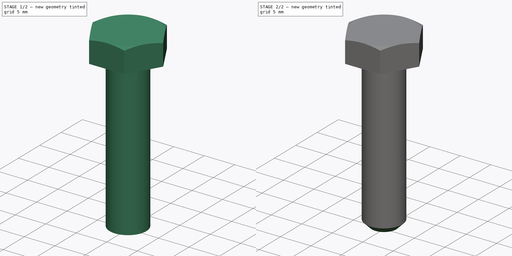
[diagram: build sequence overview — one tinted view per stage of 2, left to right]
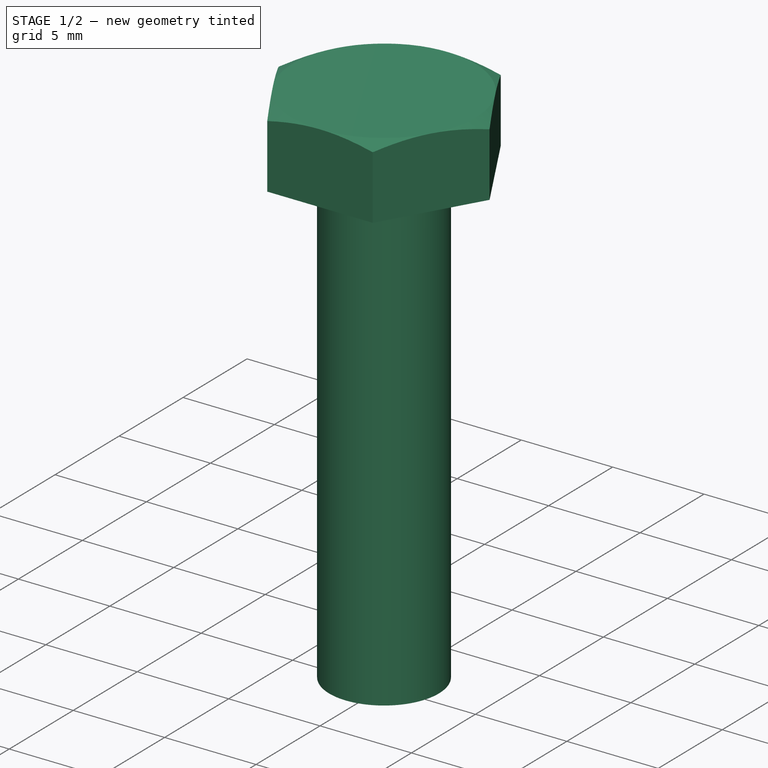
[diagram: stage 1 of 2 — iso view after this stage's code; geometry added in this stage tinted green]
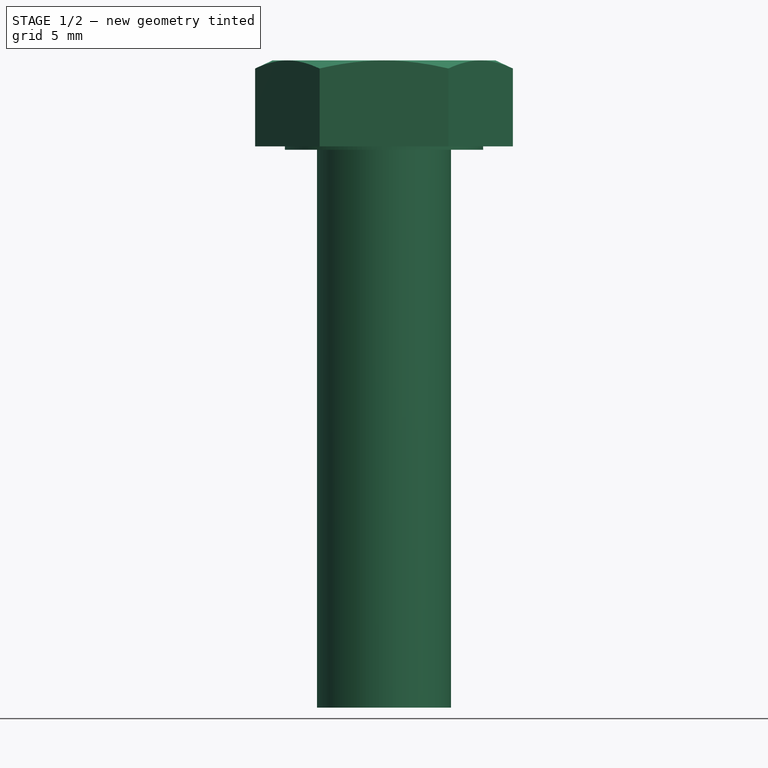
[diagram: stage 1 of 2 — front view after this stage's code; geometry added in this stage tinted green]
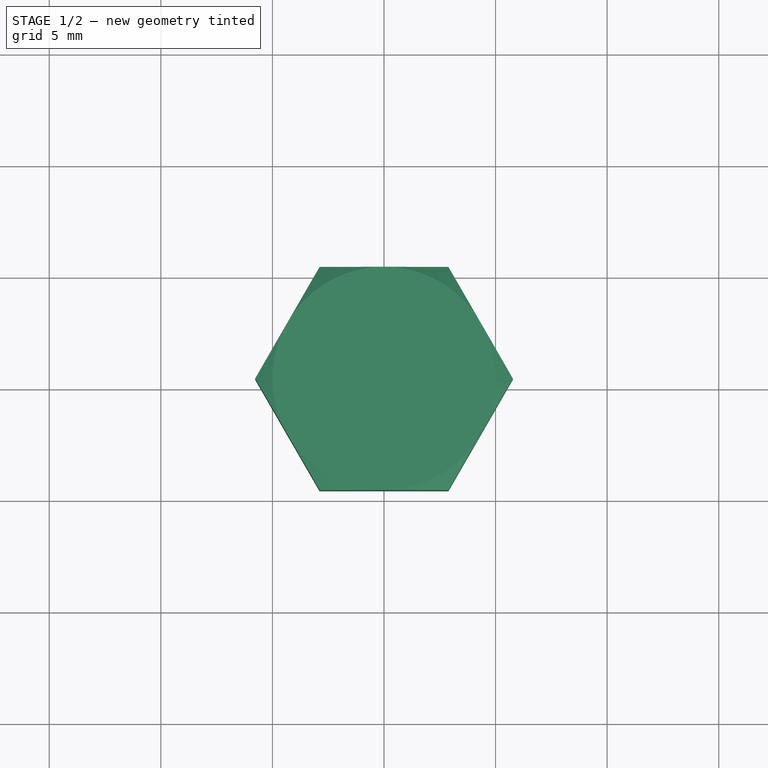
[diagram: stage 1 of 2 — top view after this stage's code; geometry added in this stage tinted green]
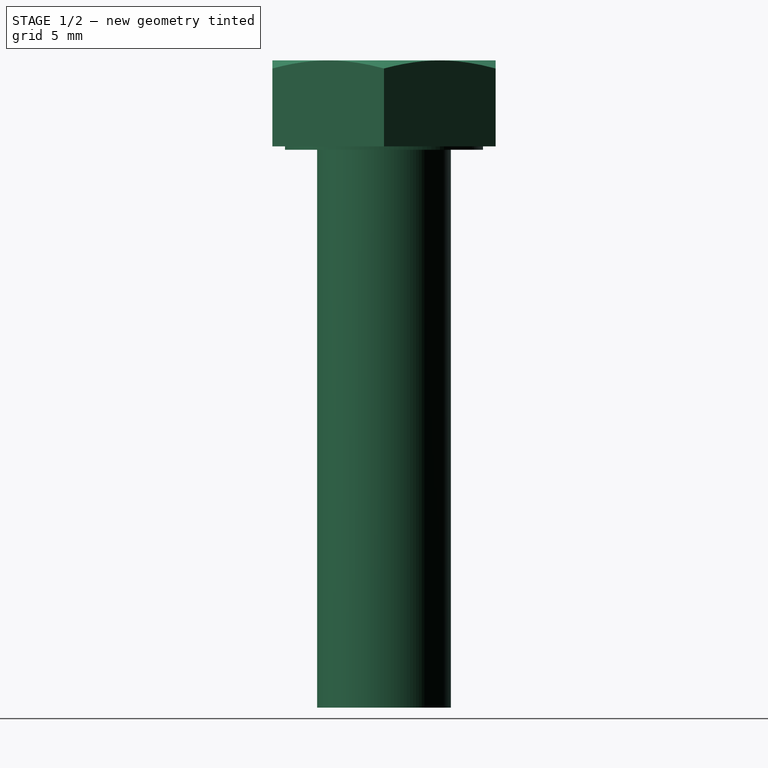
[diagram: stage 1 of 2 — right view after this stage's code; geometry added in this stage tinted green]
FCSTD DOCUMENT
Label: ISO4017_Hex_Head_Screw_M6x25
License: CC-BY 3.0
LicenseURL: http://creativecommons.org/licenses/by/3.0/
objects: Sketcher::SketchObject×2, PartDesign::Revolution×1, PartDesign::Pocket×1, PartDesign::Chamfer×1
note: 7 computed .brp shape members not serialized (recipe doc carries the construction recipe); baked Part::Feature solids carry a one-line shape summary decoded from their .brp

FEATURE [Sketcher::SketchObject] Sketch
  Placement = pos=(0,0,0) rot=(-1,0,0;4.71239rad)
  sketch-geometry (9):
    g0: LineSegment StartX=0 StartY=4 StartZ=0 EndX=5 EndY=4 EndZ=0
    g1: LineSegment StartX=5 StartY=4 StartZ=0 EndX=6 EndY=3.53369 EndZ=0
    g2: LineSegment StartX=6 StartY=3.53369 StartZ=0 EndX=6 EndY=0.15 EndZ=0
    g3: LineSegment StartX=6 StartY=0.15 StartZ=0 EndX=4.44 EndY=0.15 EndZ=0
    g4: LineSegment StartX=4.44 StartY=0.15 StartZ=0 EndX=4.44 EndY=0 EndZ=0
    g5: LineSegment StartX=4.44 StartY=0 StartZ=0 EndX=3 EndY=0 EndZ=0
    g6: LineSegment StartX=3 StartY=0 StartZ=0 EndX=3 EndY=-25 EndZ=0
    g7: LineSegment StartX=3 StartY=-25 StartZ=0 EndX=0 EndY=-25 EndZ=0
    g8: LineSegment StartX=0 StartY=4 StartZ=0 EndX=0 EndY=-25 EndZ=0
  constraints (27):
    c: PointOnObject(g0,g-2)
    c: Horizontal(g0)
    c: Coincident(g0,g1)
    c: Coincident(g1,g2)
    c: Vertical(g2)
    c: Coincident(g2,g3)
    c: Horizontal(g3)
    c: Coincident(g3,g4)
    c: Coincident(g4,g5)
    c: Horizontal(g5)
    c: Vertical(g4)
    c: DistanceX(g0) = 5
    c: Angle(g0,g1) = 2.70526
    c: DistanceY(g4,g2) = 0.15
    c: Vertical(g6)
    c: Coincident(g6,g7)
    c: PointOnObject(g7,g-2)
    c: Horizontal(g7)
    c: Coincident(g5,g6)
    c: DistanceX(g4) = 4.44
    c: DistanceX(g1,g0) = -6
    c: Coincident(g8,g0)
    c: Coincident(g8,g7)
    c: DistanceY(g4,g0) = 4
    c: DistanceX(g7) = -3
    c: PointOnObject(g5,g-1)
    c: DistanceY(g4,g6) = -25
FEATURE [PartDesign::Revolution] Revolution
  Angle = 360
  Axis = (0,0,1)
  Base = (0,0,0)
  Placement = pos=(0,0,0) rot=(-1,0,0;4.71239rad)
  ReferenceAxis = -> Sketch [V_Axis]
  Reversed = true
  Sketch = -> Sketch
FEATURE [Sketcher::SketchObject] Sketch001  label="Hexagon"
  Placement = pos=(0,0,4) rot=(0,0,1;3.14159rad)
  Support = -> Revolution [Face1]
  sketch-geometry (9):
    g0: LineSegment StartX=-2.88675 StartY=5 StartZ=0 EndX=2.88675 EndY=5 EndZ=0
    g1: LineSegment StartX=2.88675 StartY=5 StartZ=0 EndX=5.7735 EndY=0 EndZ=0
    g2: LineSegment StartX=5.7735 StartY=0 StartZ=0 EndX=2.88675 EndY=-5 EndZ=0
    g3: LineSegment StartX=2.88675 StartY=-5 StartZ=0 EndX=-2.88675 EndY=-5 EndZ=0
    g4: LineSegment StartX=-2.88675 StartY=-5 StartZ=0 EndX=-5.7735 EndY=0 EndZ=0
    g5: LineSegment StartX=-5.7735 StartY=0 StartZ=0 EndX=-2.88675 EndY=5 EndZ=0
    g6: Circle [constr] CenterX=0 CenterY=0 CenterZ=0 NormalX=0 NormalY=0 NormalZ=1 Radius=5.7735
    g7: Circle CenterX=0 CenterY=0 CenterZ=0 NormalX=0 NormalY=0 NormalZ=1 Radius=7.7735
    g8: LineSegment [constr] StartX=0 StartY=5.7735 StartZ=0 EndX=0 EndY=7.7735 EndZ=0
  constraints (26):
    c: Horizontal(g0)
    c: Coincident(g0,g1)
    c: Coincident(g1,g2)
    c: Coincident(g2,g3)
    c: Horizontal(g3)
    c: Coincident(g3,g4)
    c: Coincident(g4,g5)
    c: Coincident(g5,g0)
    c: Equal(g5,g0)
    c: Equal(g0,g4)
    c: Equal(g4,g3)
    c: Equal(g3,g2)
    c: Equal(g2,g1)
    c: PointOnObject(g0,g6)
    c: PointOnObject(g2,g6)
    c: PointOnObject(g1,g6)
    c: PointOnObject(g4,g6)
    c: PointOnObject(g0,g6)
    c: DistanceY(g3,g0) = 10
    c: Coincident(g6,g-1)
    c: Coincident(g7,g-1)
    c: PointOnObject(g8,g6)
    c: PointOnObject(g8,g7)
    c: Vertical(g8)
    c: PointOnObject(g8,g-2)
    c: DistanceY(g8) = 2
FEATURE [PartDesign::Pocket] Pocket
  Length = 5
  Placement = pos=(0,0,0) rot=(-1,0,0;4.71239rad)
  Sketch = -> Sketch001
  Type = 1
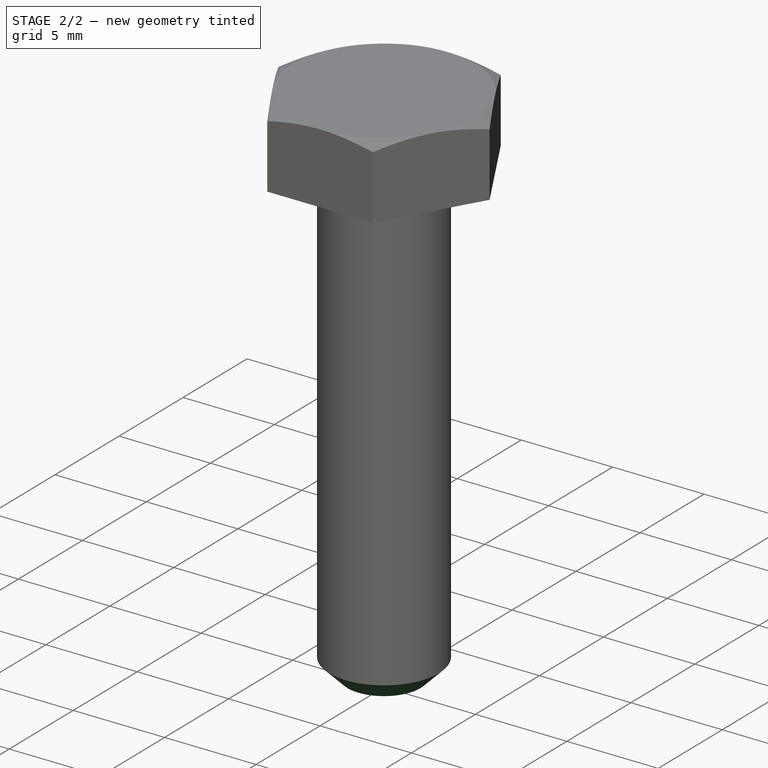
[diagram: stage 2 of 2 — iso view after this stage's code; geometry added in this stage tinted green]
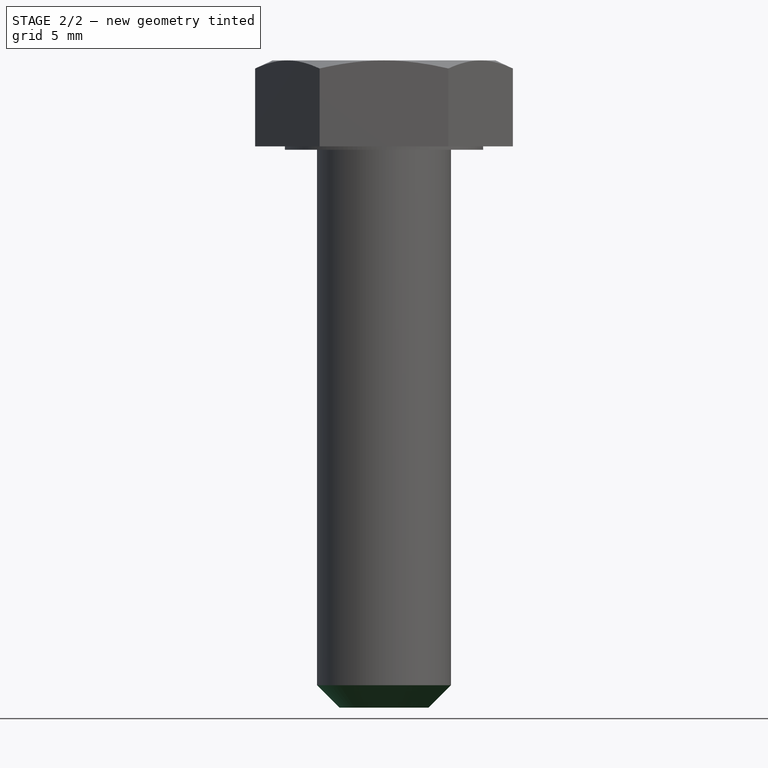
[diagram: stage 2 of 2 — front view after this stage's code; geometry added in this stage tinted green]
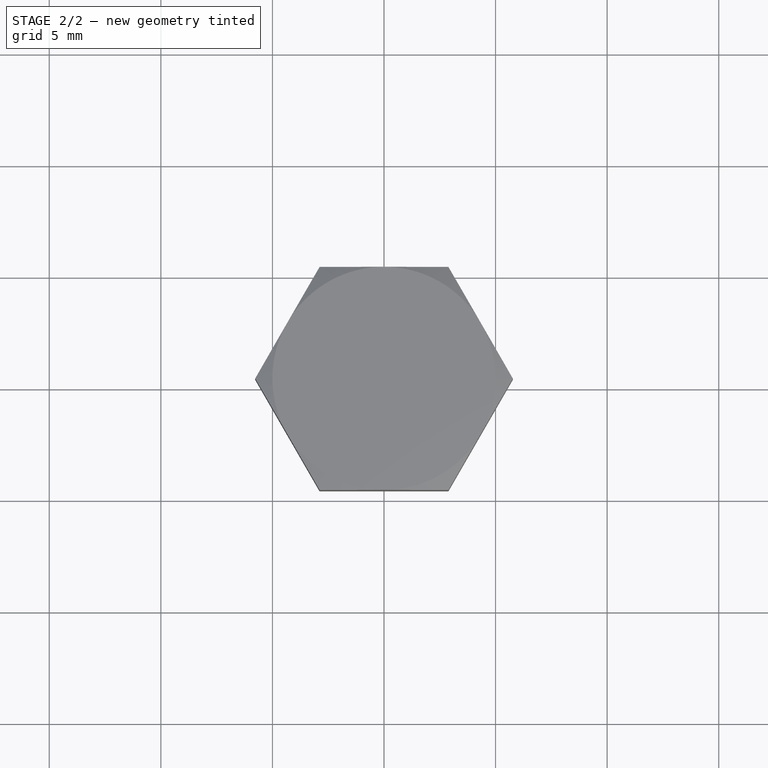
[diagram: stage 2 of 2 — top view after this stage's code; geometry added in this stage tinted green]
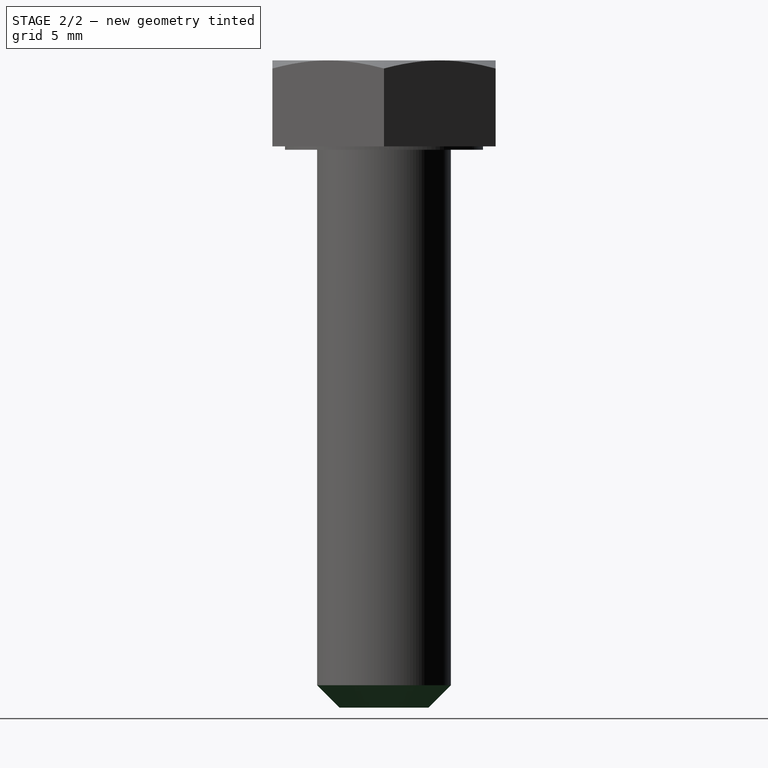
[diagram: stage 2 of 2 — right view after this stage's code; geometry added in this stage tinted green]
FEATURE [PartDesign::Chamfer] Chamfer
  Base = -> Pocket [Edge29]
  Placement = pos=(0,0,0) rot=(-1,0,0;4.71239rad)
  Size = 1
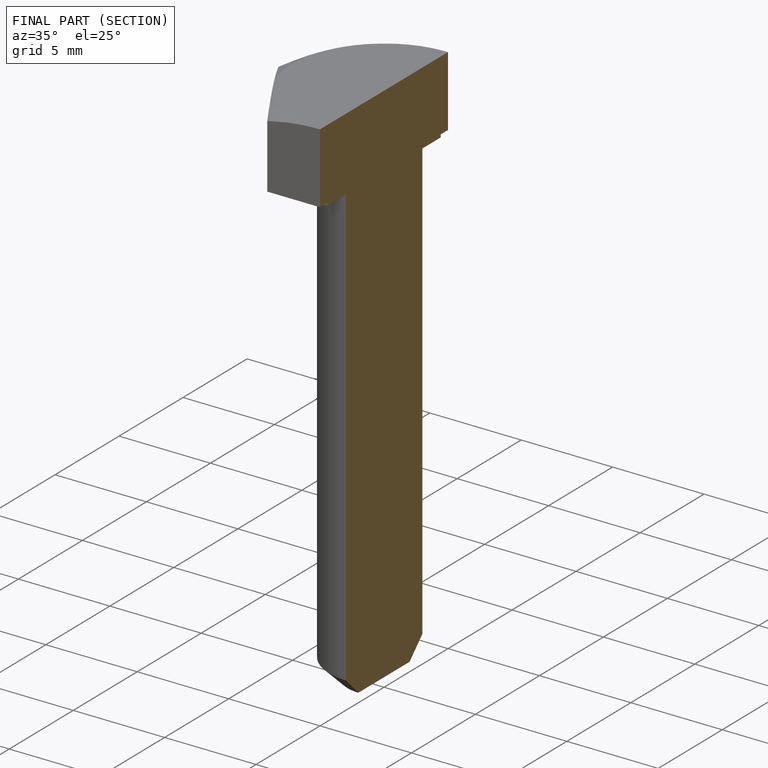
[diagram: finished part — half-section view (interior)]
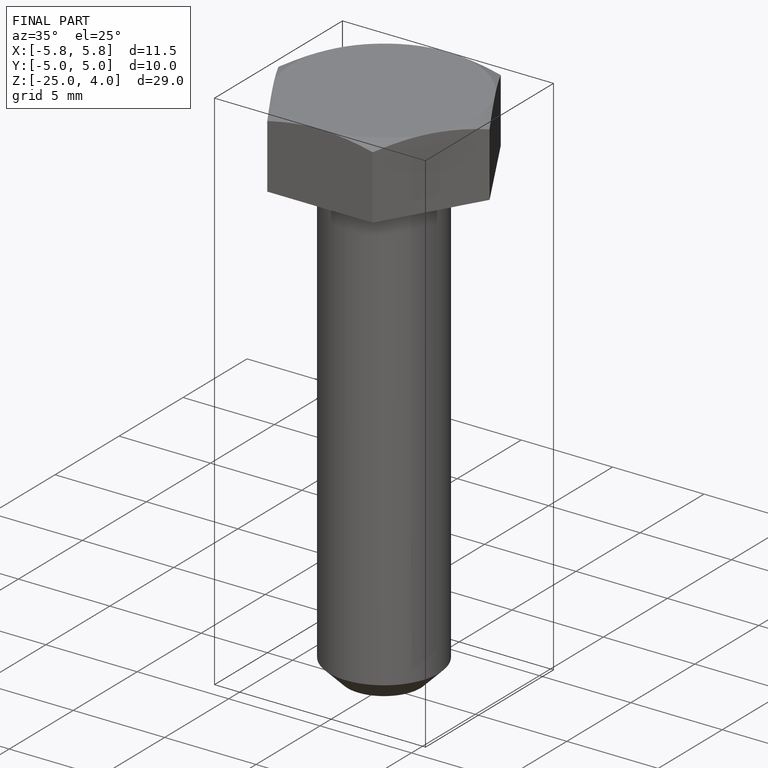
[diagram: finished part — iso view with bounding-box wireframe]
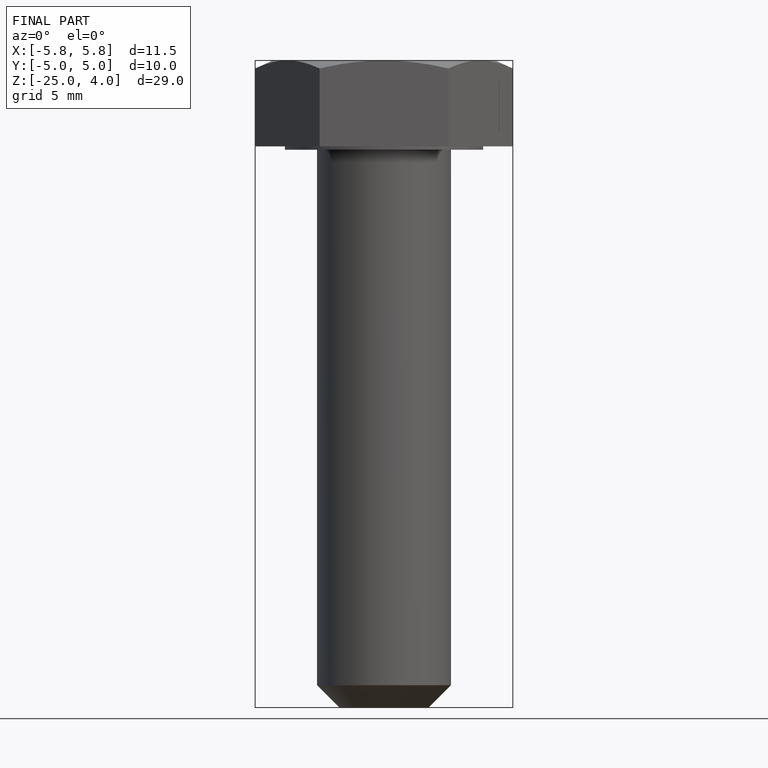
[diagram: finished part — front view with bounding-box wireframe]
